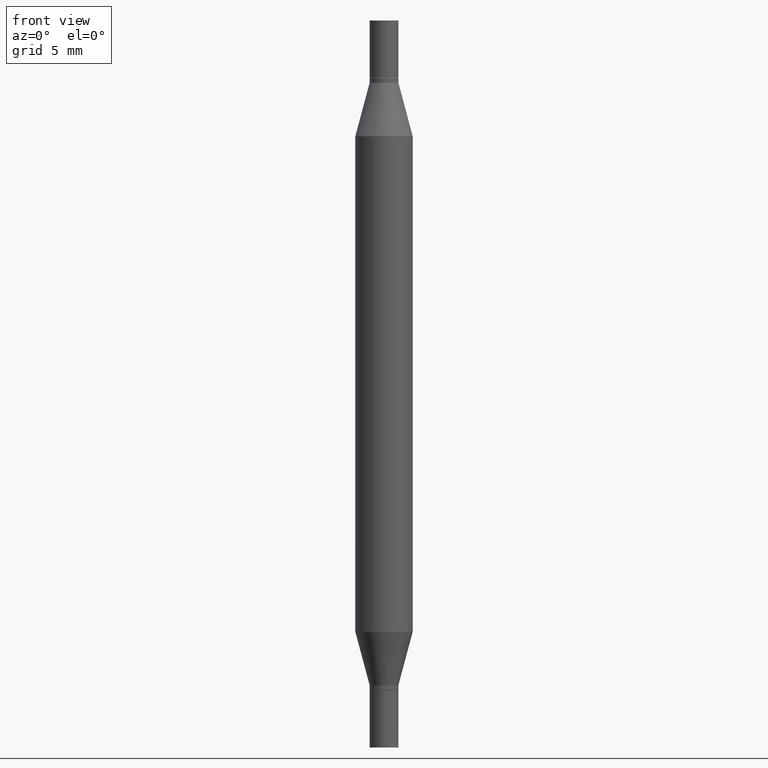
[diagram: clean part render]
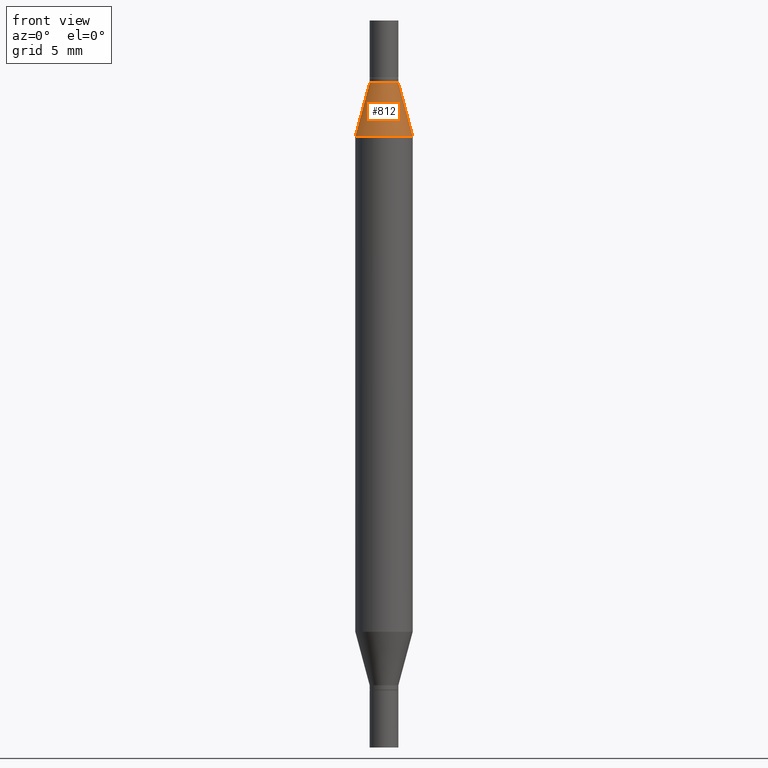
[diagram: same view with one face highlighted and labeled with its STEP entity id]
A machine part, front view. The second image highlights one B-rep face of the part: STEP entity #812.
In plain terms, the highlighted conical surface has half-angle 15 deg.
Its self-contained STEP definition (entity closure, byte-faithful):
#20 = CARTESIAN_POINT ( 'NONE',  ( 3.076410765668156654E-29, -8.311408901143919011E-16, -0.2380954988232820146 ) ) ;
#45 = DIRECTION ( 'NONE',  ( 0.2588190451025213501, -5.180148453816008779E-15, -0.9659258262890682012 ) ) ;
#70 = LINE ( 'NONE', #971, #916 ) ;
#78 = ORIENTED_EDGE ( 'NONE', *, *, #717, .T. ) ;
#93 = AXIS2_PLACEMENT_3D ( 'NONE', #974, #518, #746 ) ;
#100 = DIRECTION ( 'NONE',  ( 2.445468806185136597E-29, 3.491805094961124077E-15, 1.000000000000000000 ) ) ;
#128 = VERTEX_POINT ( 'NONE', #893 ) ;
#149 = DIRECTION ( 'NONE',  ( -0.2588190451025213501, -1.597197180879714326E-15, -0.9659258262890682012 ) ) ;
#152 = CIRCLE ( 'NONE', #93, 0.02954999999999991661 ) ;
#156 = AXIS2_PLACEMENT_3D ( 'NONE', #909, #929, #863 ) ;
#179 = DIRECTION ( 'NONE',  ( 1.000000000000000000, -6.982962677686265133E-15, 0.000000000000000000 ) ) ;
#207 = VERTEX_POINT ( 'NONE', #649 ) ;
#217 = LINE ( 'NONE', #441, #744 ) ;
#237 = CARTESIAN_POINT ( 'NONE',  ( 0.02954999999999991661, -6.530554135165988789E-16, -0.1280000000000001137 ) ) ;
#276 = ORIENTED_EDGE ( 'NONE', *, *, #688, .T. ) ;
#305 = ORIENTED_EDGE ( 'NONE', *, *, #677, .F. ) ;
#309 = VERTEX_POINT ( 'NONE', #237 ) ;
#441 = CARTESIAN_POINT ( 'NONE',  ( -0.02954999999999991661, -2.439811505568221169E-16, -0.1280000000000001137 ) ) ;
#444 = CIRCLE ( 'NONE', #478, 0.05904999999999999832 ) ;
#478 = AXIS2_PLACEMENT_3D ( 'NONE', #20, #100, #179 ) ;
#518 = DIRECTION ( 'NONE',  ( 2.445468806185136597E-29, 3.491805094961124077E-15, 1.000000000000000000 ) ) ;
#538 = ORIENTED_EDGE ( 'NONE', *, *, #638, .F. ) ;
#583 = CONICAL_SURFACE ( 'NONE', #156, 0.02954999999999991661, 0.2617993877991500740 ) ;
#625 = EDGE_LOOP ( 'NONE', ( #538, #276, #78, #305 ) ) ;
#638 = EDGE_CURVE ( 'NONE', #207, #309, #152, .T. ) ;
#649 = CARTESIAN_POINT ( 'NONE',  ( -0.02954999999999991661, -2.275696666105042854E-16, -0.1280000000000001137 ) ) ;
#677 = EDGE_CURVE ( 'NONE', #309, #866, #70, .T. ) ;
#688 = EDGE_CURVE ( 'NONE', #207, #128, #217, .T. ) ;
#717 = EDGE_CURVE ( 'NONE', #128, #866, #444, .T. ) ;
#744 = VECTOR ( 'NONE', #149, 39.37007874015747433 ) ;
#746 = DIRECTION ( 'NONE',  ( 1.000000000000000000, -6.982962677686265133E-15, 0.000000000000000000 ) ) ;
#766 = FACE_OUTER_BOUND ( 'NONE', #625, .T. ) ;
#812 = ADVANCED_FACE ( 'NONE', ( #766 ), #583, .T. ) ;
#857 = CARTESIAN_POINT ( 'NONE',  ( 0.05904999999999999832, -1.243484836231766624E-15, -0.2380954988232820146 ) ) ;
#863 = DIRECTION ( 'NONE',  ( 1.000000000000000000, -6.982962677686265133E-15, 0.000000000000000000 ) ) ;
#866 = VERTEX_POINT ( 'NONE', #857 ) ;
#893 = CARTESIAN_POINT ( 'NONE',  ( -0.05904999999999999832, -4.260284833459836245E-16, -0.2380954988232820146 ) ) ;
#909 = CARTESIAN_POINT ( 'NONE',  ( 3.345645873741884627E-29, -4.467088663909703532E-16, -0.1280000000000001137 ) ) ;
#916 = VECTOR ( 'NONE', #45, 39.37007874015747433 ) ;
#929 = DIRECTION ( 'NONE',  ( -2.445468806185136597E-29, -3.491805094961124077E-15, -1.000000000000000000 ) ) ;
#971 = CARTESIAN_POINT ( 'NONE',  ( 0.02954999999999991661, -6.530554135165988789E-16, -0.1280000000000001137 ) ) ;
#974 = CARTESIAN_POINT ( 'NONE',  ( 3.345645873741884627E-29, -4.467088663909703532E-16, -0.1280000000000001137 ) ) ;